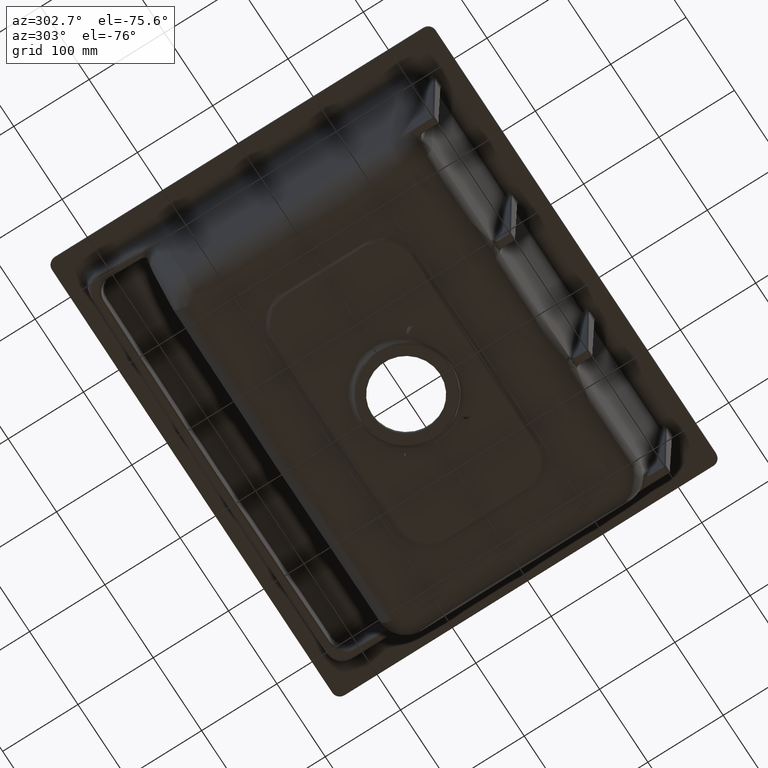
[diagram: clean part render]
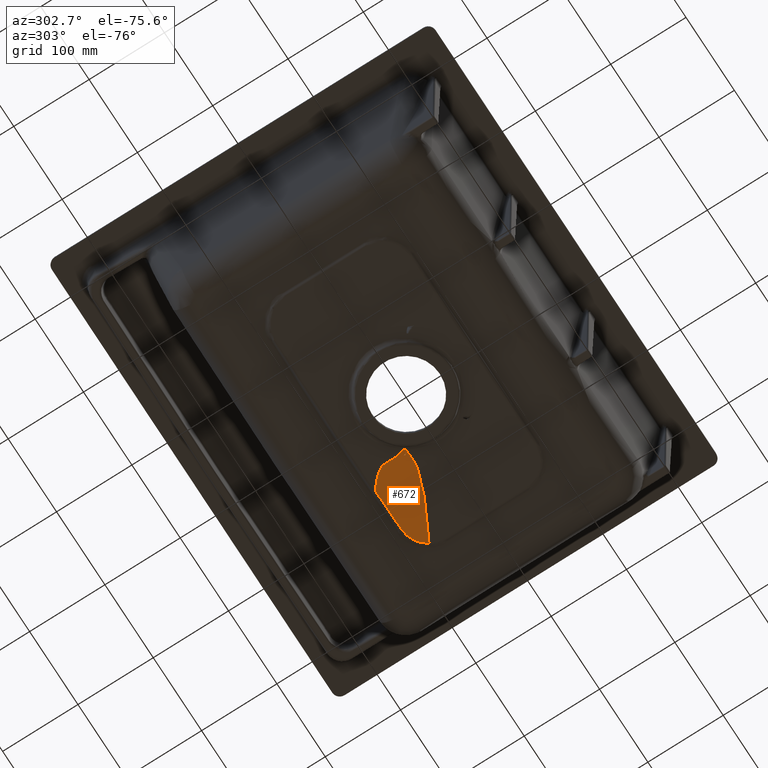
[diagram: same view with one face highlighted and labeled with its STEP entity id]
A machine part, auxiliary view. The second image highlights one B-rep face of the part: STEP entity #672.
In plain terms, the highlighted face is a freeform B-spline surface patch.
Its self-contained STEP definition (entity closure, byte-faithful):
#672=ADVANCED_FACE('',(#1131),#1016,.T.);
#1016=B_SPLINE_SURFACE_WITH_KNOTS('',3,3,((#8750,#8751,#8752,#8753),(#8754,
#8755,#8756,#8757),(#8758,#8759,#8760,#8761),(#8762,#8763,#8764,#8765),
(#8766,#8767,#8768,#8769),(#8770,#8771,#8772,#8773),(#8774,#8775,#8776,
#8777),(#8778,#8779,#8780,#8781),(#8782,#8783,#8784,#8785),(#8786,#8787,
#8788,#8789),(#8790,#8791,#8792,#8793),(#8794,#8795,#8796,#8797),(#8798,
#8799,#8800,#8801),(#8802,#8803,#8804,#8805),(#8806,#8807,#8808,#8809),
(#8810,#8811,#8812,#8813),(#8814,#8815,#8816,#8817),(#8818,#8819,#8820,
#8821),(#8822,#8823,#8824,#8825),(#8826,#8827,#8828,#8829),(#8830,#8831,
#8832,#8833),(#8834,#8835,#8836,#8837),(#8838,#8839,#8840,#8841),(#8842,
#8843,#8844,#8845),(#8846,#8847,#8848,#8849),(#8850,#8851,#8852,#8853),
(#8854,#8855,#8856,#8857),(#8858,#8859,#8860,#8861),(#8862,#8863,#8864,
#8865),(#8866,#8867,#8868,#8869),(#8870,#8871,#8872,#8873),(#8874,#8875,
#8876,#8877),(#8878,#8879,#8880,#8881),(#8882,#8883,#8884,#8885)),
 .UNSPECIFIED.,.F.,.F.,.F.,(4,2,2,2,2,2,2,2,2,2,2,2,2,2,2,2,4),(4,4),(0.,
0.25,0.5,0.625,0.75,0.8125,0.84375,0.859375,0.875,0.890625,0.90625,0.9140625,
0.921875,0.9375,0.953125,0.96875,1.),(0.,1.),.UNSPECIFIED.);
#1131=FACE_OUTER_BOUND('',#1495,.T.);
#1495=EDGE_LOOP('',(#2002,#2003,#2004,#2005,#2006));
#2002=ORIENTED_EDGE('',*,*,#4130,.T.);
#2003=ORIENTED_EDGE('',*,*,#4132,.T.);
#2004=ORIENTED_EDGE('',*,*,#4133,.T.);
#2005=ORIENTED_EDGE('',*,*,#4134,.T.);
#2006=ORIENTED_EDGE('',*,*,#4104,.T.);
#3595=VERTEX_POINT('',#8017);
#3596=VERTEX_POINT('',#8097);
#3612=VERTEX_POINT('',#8661);
#3613=VERTEX_POINT('',#8726);
#3614=VERTEX_POINT('',#8733);
#4104=EDGE_CURVE('',#3596,#3595,#4938,.T.);
#4130=EDGE_CURVE('',#3595,#3612,#4953,.T.);
#4132=EDGE_CURVE('',#3612,#3613,#4955,.T.);
#4133=EDGE_CURVE('',#3613,#3614,#4956,.T.);
#4134=EDGE_CURVE('',#3614,#3596,#4957,.T.);
#4938=B_SPLINE_CURVE_WITH_KNOTS('',3,(#8093,#8094,#8095,#8096),
 .UNSPECIFIED.,.F.,.F.,(4,4),(0.,1.),.UNSPECIFIED.);
#4953=B_SPLINE_CURVE_WITH_KNOTS('',3,(#8662,#8663,#8664,#8665,#8666,#8667,
#8668,#8669,#8670,#8671,#8672,#8673,#8674,#8675,#8676,#8677,#8678,#8679,
#8680,#8681,#8682,#8683,#8684,#8685),.UNSPECIFIED.,.F.,.F.,(4,2,2,2,2,2,
2,2,2,2,2,4),(0.,0.0624999999999993,0.124999999999999,0.187499999999998,
0.218749999999998,0.249999999999997,0.281249999999997,0.312499999999997,
0.374999999999997,0.499999999999998,0.749999999999999,1.),.UNSPECIFIED.);
#4955=B_SPLINE_CURVE_WITH_KNOTS('',3,(#8722,#8723,#8724,#8725),
 .UNSPECIFIED.,.F.,.F.,(4,4),(0.,1.),.UNSPECIFIED.);
#4956=B_SPLINE_CURVE_WITH_KNOTS('',3,(#8727,#8728,#8729,#8730,#8731,#8732),
 .UNSPECIFIED.,.F.,.F.,(4,2,4),(0.,0.5,1.),.UNSPECIFIED.);
#4957=B_SPLINE_CURVE_WITH_KNOTS('',3,(#8734,#8735,#8736,#8737,#8738,#8739,
#8740,#8741,#8742,#8743,#8744,#8745,#8746,#8747,#8748,#8749),
 .UNSPECIFIED.,.F.,.F.,(4,2,2,2,2,2,2,4),(0.,0.25,0.5,0.625,0.75,0.875,
0.9375,1.),.UNSPECIFIED.);
#8017=CARTESIAN_POINT('',(53.1337325815206,37.0206878246737,-214.05531452506));
#8093=CARTESIAN_POINT('',(54.2822380104342,35.3168777370203,-214.055520215495));
#8094=CARTESIAN_POINT('',(53.8532905497523,35.9707507739936,-214.056164860104));
#8095=CARTESIAN_POINT('',(53.4703786553557,36.5384861306381,-214.055813901161));
#8096=CARTESIAN_POINT('',(53.1337936972054,37.0205874930439,-214.055330527934));
#8097=CARTESIAN_POINT('',(54.2822858240041,35.3168061495281,-214.055518482756));
#8661=CARTESIAN_POINT('',(76.4595037996433,90.247559434003,-210.484688428161));
#8662=CARTESIAN_POINT('',(53.1338171138135,37.0206614037541,-214.055325487278));
#8663=CARTESIAN_POINT('',(53.655998370999,38.6650942508308,-213.990466661966));
#8664=CARTESIAN_POINT('',(54.1485315228402,40.3862284929896,-213.920441359234));
#8665=CARTESIAN_POINT('',(55.0511496977399,44.0733037092094,-213.764840184279));
#8666=CARTESIAN_POINT('',(55.4643675940617,46.0430896534608,-213.678911713062));
#8667=CARTESIAN_POINT('',(56.072765759774,50.5224543617708,-213.476343221377));
#8668=CARTESIAN_POINT('',(56.3174015413622,53.0620751266913,-213.358513848411));
#8669=CARTESIAN_POINT('',(56.2067651036602,57.8612393838556,-213.117524625034));
#8670=CARTESIAN_POINT('',(56.0627309606467,59.7160596740662,-213.021517822589));
#8671=CARTESIAN_POINT('',(55.8719547684129,62.891765038422,-212.844849978645));
#8672=CARTESIAN_POINT('',(55.8644190207796,64.1116873297449,-212.770627912527));
#8673=CARTESIAN_POINT('',(56.0011126150915,66.0494762684693,-212.645979230172));
#8674=CARTESIAN_POINT('',(56.13782725713,66.7898415420677,-212.594465878257));
#8675=CARTESIAN_POINT('',(56.462792625168,68.1159834198859,-212.49977470759));
#8676=CARTESIAN_POINT('',(56.6584391474536,68.6853657287842,-212.457068966735));
#8677=CARTESIAN_POINT('',(57.3032301864674,70.2470879408648,-212.336249638455));
#8678=CARTESIAN_POINT('',(57.7879969546079,71.1034399186393,-212.265527444468));
#8679=CARTESIAN_POINT('',(59.3247720953787,73.5447584277245,-212.059811616035));
#8680=CARTESIAN_POINT('',(60.4423033475608,74.9216031841615,-211.936278307039));
#8681=CARTESIAN_POINT('',(63.8955054245818,78.8824535578231,-211.575499724452));
#8682=CARTESIAN_POINT('',(66.3384621856889,81.2365433814564,-211.351436894937));
#8683=CARTESIAN_POINT('',(71.3230667099036,85.8384952183502,-210.911267963573));
#8684=CARTESIAN_POINT('',(73.8762041103683,88.053296455072,-210.696908914973));
#8685=CARTESIAN_POINT('',(76.4590042555253,90.2479906667278,-210.484672055991));
#8722=CARTESIAN_POINT('',(76.4595036292337,90.247517414414,-210.484701294979));
#8723=CARTESIAN_POINT('',(89.2110137218202,90.1373495527905,-210.293820022507));
#8724=CARTESIAN_POINT('',(107.088805310349,89.9857412230102,-209.984132654965));
#8725=CARTESIAN_POINT('',(130.360509964928,89.8013910465501,-209.219994332483));
#8726=CARTESIAN_POINT('',(130.360523702489,89.8014083596515,-209.220408530765));
#8727=CARTESIAN_POINT('',(130.360509964928,89.8013910465495,-209.219994332483));
#8728=CARTESIAN_POINT('',(136.395510831348,89.75358391376,-209.021831992994));
#8729=CARTESIAN_POINT('',(142.352554823228,88.133422322844,-208.871599619013));
#8730=CARTESIAN_POINT('',(152.851550068765,82.0942033632576,-208.576407883613));
#8731=CARTESIAN_POINT('',(157.237445130732,77.7744712968827,-208.431867750668));
#8732=CARTESIAN_POINT('',(160.342434228155,72.5887825646204,-208.27500777007));
#8733=CARTESIAN_POINT('',(160.34266797779,72.5883946927062,-208.274990597256));
#8734=CARTESIAN_POINT('',(160.342450515062,72.5887915280722,-208.275006832644));
#8735=CARTESIAN_POINT('',(152.483545367808,68.2634609594133,-208.727343021076));
#8736=CARTESIAN_POINT('',(144.587003476614,64.0159273174793,-209.182541187926));
#8737=CARTESIAN_POINT('',(128.65648254215,55.7919668741031,-210.101147261302));
#8738=CARTESIAN_POINT('',(120.632751503147,51.802091150606,-210.564321746846));
#8739=CARTESIAN_POINT('',(108.356328163979,46.2268224464646,-211.269473613456));
#8740=CARTESIAN_POINT('',(104.227360295044,44.4328059736517,-211.506199123928));
#8741=CARTESIAN_POINT('',(95.8152055221136,41.0785999290673,-211.984871037543));
#8742=CARTESIAN_POINT('',(91.5468747400807,39.5057752630922,-212.226528190555));
#8743=CARTESIAN_POINT('',(82.6353236475407,36.8305000835273,-212.719673660966));
#8744=CARTESIAN_POINT('',(78.0526576972225,35.6862302100294,-212.970385241224));
#8745=CARTESIAN_POINT('',(70.2010650545446,34.9060820061913,-213.36546176482));
#8746=CARTESIAN_POINT('',(67.3635158321863,34.8650118040807,-213.501591260665));
#8747=CARTESIAN_POINT('',(61.2350845427151,34.9610183221816,-213.77702315186));
#8748=CARTESIAN_POINT('',(57.9476152091808,35.1008417560021,-213.91664909271));
#8749=CARTESIAN_POINT('',(54.2822898887701,35.3168747065642,-214.05551918402));
#8750=CARTESIAN_POINT('',(160.911613405546,72.9022125392094,-208.242248681791));
#8751=CARTESIAN_POINT('',(149.578020310644,91.7868704322642,-208.815757256013));
#8752=CARTESIAN_POINT('',(138.171022033711,110.691111794209,-208.309234107696));
#8753=CARTESIAN_POINT('',(126.772664262225,129.478953717575,-206.726323263969));
#8754=CARTESIAN_POINT('',(152.950251037264,68.5155618138957,-208.700447792149));
#8755=CARTESIAN_POINT('',(141.891286899815,87.0868476428588,-209.248294536752));
#8756=CARTESIAN_POINT('',(130.76210341635,105.676031060066,-208.75638311181));
#8757=CARTESIAN_POINT('',(119.639697525248,124.154448543107,-207.228117045061));
#8758=CARTESIAN_POINT('',(144.951272221446,64.2070191202653,-209.161549122152));
#8759=CARTESIAN_POINT('',(134.195447545569,82.4341952076853,-209.681358785478));
#8760=CARTESIAN_POINT('',(123.372724698712,100.677474852224,-209.20472127209));
#8761=CARTESIAN_POINT('',(112.554831126451,118.815885199487,-207.734795552127));
#8762=CARTESIAN_POINT('',(128.811912890229,55.8682875713142,-210.092176893849));
#8763=CARTESIAN_POINT('',(118.762961735694,73.2923396613415,-210.547661253945));
#8764=CARTESIAN_POINT('',(108.654772813711,90.7289230304375,-210.103332407476));
#8765=CARTESIAN_POINT('',(98.5478369754028,108.073613170302,-208.761849766383));
#8766=CARTESIAN_POINT('',(120.683330513717,51.822615514578,-210.56143235733));
#8767=CARTESIAN_POINT('',(111.031988329897,68.7966035304571,-210.981072155297));
#8768=CARTESIAN_POINT('',(101.325558984584,85.7812731719261,-210.553662707495));
#8769=CARTESIAN_POINT('',(91.6186121856126,102.6809727935,-209.281610225798));
#8770=CARTESIAN_POINT('',(108.242791337911,46.1751864119768,-211.275996667164));
#8771=CARTESIAN_POINT('',(99.3447871329743,62.2816132128813,-211.629389912322));
#8772=CARTESIAN_POINT('',(90.3988478816963,78.3956587322342,-211.229759679097));
#8773=CARTESIAN_POINT('',(81.4498112525802,94.436479957271,-210.079111367147));
#8774=CARTESIAN_POINT('',(104.057995463975,44.359027085388,-211.515908268632));
#8775=CARTESIAN_POINT('',(95.4353736420583,60.1468935210224,-211.84524374149));
#8776=CARTESIAN_POINT('',(86.767392126224,75.9413480318402,-211.455217357384));
#8777=CARTESIAN_POINT('',(78.0955424505882,91.6667362357377,-210.347697040961));
#8778=CARTESIAN_POINT('',(95.5284845556554,40.9688316778555,-212.001128821939));
#8779=CARTESIAN_POINT('',(87.5512784399173,55.9959957422315,-212.275269213349));
#8780=CARTESIAN_POINT('',(79.5343514636001,71.027548928038,-211.906105477738));
#8781=CARTESIAN_POINT('',(71.5119912436722,85.999091424658,-210.895220000676));
#8782=CARTESIAN_POINT('',(91.1985637315068,39.3823205018102,-212.246149915531));
#8783=CARTESIAN_POINT('',(83.5829270478998,53.981225029307,-212.489450865187));
#8784=CARTESIAN_POINT('',(75.9305642054269,68.5833506445323,-212.131122083866));
#8785=CARTESIAN_POINT('',(68.2719475054818,83.130271518341,-211.172600710672));
#8786=CARTESIAN_POINT('',(84.4080288415687,37.3718797949305,-212.621396209415));
#8787=CARTESIAN_POINT('',(77.501632992329,51.0898266373912,-212.808113736522));
#8788=CARTESIAN_POINT('',(70.5640869632093,64.8092342100807,-212.470574633181));
#8789=CARTESIAN_POINT('',(63.6195157507752,78.4821246288692,-211.609963744297));
#8790=CARTESIAN_POINT('',(82.0988764258982,36.7610374652264,-212.747701288178));
#8791=CARTESIAN_POINT('',(75.4532021187215,50.1523312848826,-212.91387278482));
#8792=CARTESIAN_POINT('',(68.7786482408212,63.5446307370889,-212.583716889314));
#8793=CARTESIAN_POINT('',(62.0972886808787,76.8937064969606,-211.758322106659));
#8794=CARTESIAN_POINT('',(78.4929629524647,35.9972063698363,-212.940363173495));
#8795=CARTESIAN_POINT('',(72.3248442270981,48.7618940566175,-213.071761784164));
#8796=CARTESIAN_POINT('',(66.1309757801354,61.5265541043128,-212.756434231094));
#8797=CARTESIAN_POINT('',(59.9296654993783,74.2530961946489,-211.995327642346));
#8798=CARTESIAN_POINT('',(77.2676767160978,35.7680695881987,-213.005103813797));
#8799=CARTESIAN_POINT('',(71.2721097310622,48.302437270763,-213.124272607261));
#8800=CARTESIAN_POINT('',(65.2524883408173,60.8367136312855,-212.814423073129));
#8801=CARTESIAN_POINT('',(59.22616173169,73.3351244992805,-212.076433034352));
#8802=CARTESIAN_POINT('',(75.3787075106483,35.4749057000859,-213.103262383311));
#8803=CARTESIAN_POINT('',(69.6782508453974,47.6001530513339,-213.202897282035));
#8804=CARTESIAN_POINT('',(63.9554397867531,59.7247401438305,-212.903471532856));
#8805=CARTESIAN_POINT('',(58.2254550710528,71.8163647182973,-212.205785217768));
#8806=CARTESIAN_POINT('',(74.7404119416604,35.385729007242,-213.136155782191));
#8807=CARTESIAN_POINT('',(69.1450349232267,47.3626497209529,-213.229078102728));
#8808=CARTESIAN_POINT('',(63.5270092737554,59.3383087409393,-212.93359470611));
#8809=CARTESIAN_POINT('',(57.9001197258438,71.2813172399533,-212.250515070526));
#8810=CARTESIAN_POINT('',(73.4434783231428,35.2271733041518,-213.202324177366));
#8811=CARTESIAN_POINT('',(68.0731042943998,46.8752913914464,-213.28150250299));
#8812=CARTESIAN_POINT('',(62.6841538416302,58.5230786719001,-212.99492073038));
#8813=CARTESIAN_POINT('',(57.2908162608254,70.1426091249453,-212.343218376474));
#8814=CARTESIAN_POINT('',(72.7845519811285,35.1577553031583,-213.23561447658));
#8815=CARTESIAN_POINT('',(67.5346289442041,46.6293973248685,-213.307654674038));
#8816=CARTESIAN_POINT('',(62.2660273480124,58.1001680976154,-213.026043742321));
#8817=CARTESIAN_POINT('',(56.991611237654,69.5432183067115,-212.391421230745));
#8818=CARTESIAN_POINT('',(71.441087269008,35.0417127757792,-213.302653137763));
#8819=CARTESIAN_POINT('',(66.4637732018124,46.0843224981256,-213.360193602081));
#8820=CARTESIAN_POINT('',(61.4679518487241,57.1251062563252,-213.091831993188));
#8821=CARTESIAN_POINT('',(56.4637663661027,68.139741149637,-212.498191013146));
#8822=CARTESIAN_POINT('',(70.7566752113313,34.9951416990834,-213.336397138684));
#8823=CARTESIAN_POINT('',(65.9295756748043,45.7889942514244,-213.386590872298));
#8824=CARTESIAN_POINT('',(61.0868719277449,56.5817791238967,-213.126197194118));
#8825=CARTESIAN_POINT('',(56.2392599670787,67.3514710059109,-212.555715514952));
#8826=CARTESIAN_POINT('',(69.3568427443789,34.9279265405726,-213.404409460158));
#8827=CARTESIAN_POINT('',(64.8865800974912,45.0780344616791,-213.439937034586));
#8828=CARTESIAN_POINT('',(60.4029069187002,55.2268687621189,-213.202341305864));
#8829=CARTESIAN_POINT('',(55.9144661903908,65.3561866003087,-212.692025982759));
#8830=CARTESIAN_POINT('',(68.6412140509799,34.9074520811393,-213.438679597446));
#8831=CARTESIAN_POINT('',(64.3832014245181,44.6467159674276,-213.466906190536));
#8832=CARTESIAN_POINT('',(60.1123326003647,54.3842846342162,-213.244986068453));
#8833=CARTESIAN_POINT('',(55.8356781328181,64.1040166160722,-212.773285463717));
#8834=CARTESIAN_POINT('',(67.5432695727591,34.893996304285,-213.490421733949));
#8835=CARTESIAN_POINT('',(63.6900085159819,43.7087002732482,-213.510022132072));
#8836=CARTESIAN_POINT('',(59.8261556596097,52.5216277147741,-213.324175922769));
#8837=CARTESIAN_POINT('',(55.9570071205054,61.3207240413934,-212.933136357354));
#8838=CARTESIAN_POINT('',(67.1733305908397,34.8922055823923,-213.507722058199));
#8839=CARTESIAN_POINT('',(63.4693363768245,43.343621195888,-213.524935011536));
#8840=CARTESIAN_POINT('',(59.7558021303853,51.7933492132136,-213.353229303399));
#8841=CARTESIAN_POINT('',(56.0374213586473,60.2307810411765,-212.992818863726));
#8842=CARTESIAN_POINT('',(66.4266464509667,34.8921221542637,-213.542387552627));
#8843=CARTESIAN_POINT('',(63.0173214413974,42.59887087032,-213.555782548169));
#8844=CARTESIAN_POINT('',(59.6011670222439,50.3044932812137,-213.411644866722));
#8845=CARTESIAN_POINT('',(56.1814623195682,58.0007937195874,-213.110140563365));
#8846=CARTESIAN_POINT('',(66.0500676051451,34.8936885128869,-213.559748224095));
#8847=CARTESIAN_POINT('',(62.7815799006957,42.2350326725012,-213.571627403976));
#8848=CARTESIAN_POINT('',(59.5091825059096,49.5762958185059,-213.440142434703));
#8849=CARTESIAN_POINT('',(56.2349041644848,56.910000769936,-213.165473128899));
#8850=CARTESIAN_POINT('',(64.9104840362072,34.9022662337563,-213.611905116722));
#8851=CARTESIAN_POINT('',(62.0344101685718,41.2327042243548,-213.619615065466));
#8852=CARTESIAN_POINT('',(59.1571982758269,47.5636737161877,-213.521110601352));
#8853=CARTESIAN_POINT('',(56.2794122174643,53.8901567148433,-213.316529115322));
#8854=CARTESIAN_POINT('',(64.1374022017218,34.9134554009392,-213.646779112411));
#8855=CARTESIAN_POINT('',(61.4898377862552,40.6552491662405,-213.652430779746));
#8856=CARTESIAN_POINT('',(58.8369381539235,46.3953835547,-213.570336856085));
#8857=CARTESIAN_POINT('',(56.1806512918185,52.1307318629204,-213.400521714573));
#8858=CARTESIAN_POINT('',(62.5610077119225,34.9466327574677,-213.716691704628));
#8859=CARTESIAN_POINT('',(60.3383827358101,39.6214720675582,-213.718917835898));
#8860=CARTESIAN_POINT('',(58.1097832299527,44.2938803729401,-213.66251352781));
#8861=CARTESIAN_POINT('',(55.8770712245283,48.9625498092786,-213.547440665477));
#8862=CARTESIAN_POINT('',(61.757974618007,34.9686852912799,-213.751723202365));
#8863=CARTESIAN_POINT('',(59.733325988959,39.1632698520517,-213.752511681986));
#8864=CARTESIAN_POINT('',(57.7075102549874,43.3575800417589,-213.7055960145));
#8865=CARTESIAN_POINT('',(55.6808896005335,47.5501777377168,-213.611004860594));
#8866=CARTESIAN_POINT('',(60.1156382251116,35.024484248872,-213.821962430153));
#8867=CARTESIAN_POINT('',(58.4809977774966,38.3095964506094,-213.8204402043));
#8868=CARTESIAN_POINT('',(56.845700644532,41.5945036295686,-213.789590973071));
#8869=CARTESIAN_POINT('',(55.209914401265,44.8785206609598,-213.729427706957));
#8870=CARTESIAN_POINT('',(59.2764499576757,35.0580787975318,-213.857161220885));
#8871=CARTESIAN_POINT('',(57.8321260834134,37.9175801332102,-213.854791304952));
#8872=CARTESIAN_POINT('',(56.3862626678324,40.7763759177652,-213.830155596669));
#8873=CARTESIAN_POINT('',(54.9391793243319,43.6341115805631,-213.783251437889));
#8874=CARTESIAN_POINT('',(56.6973651540662,35.1760471108533,-213.962863261895));
#8875=CARTESIAN_POINT('',(55.8246878922672,36.8076166364545,-213.959091266948));
#8876=CARTESIAN_POINT('',(54.9513866502844,38.4388292186561,-213.949492241947));
#8877=CARTESIAN_POINT('',(54.0775134310742,40.0697058958434,-213.934063330916));
#8878=CARTESIAN_POINT('',(54.894292892188,35.2776092611402,-214.033590361066));
#8879=CARTESIAN_POINT('',(54.4082210224406,36.1495952606957,-214.030296332121));
#8880=CARTESIAN_POINT('',(53.9215897346144,37.0228917416413,-214.026319962693));
#8881=CARTESIAN_POINT('',(53.4345652624928,37.8975905213214,-214.021652769279));
#8882=CARTESIAN_POINT('',(52.9931642869901,35.3945504633303,-214.103717850763));
#8883=CARTESIAN_POINT('',(52.9113857829732,35.5405392440002,-214.103139095019));
#8884=CARTESIAN_POINT('',(52.8294947132414,35.6867789918859,-214.102496980091));
#8885=CARTESIAN_POINT('',(52.7475190446023,35.8332854056081,-214.101790056827));